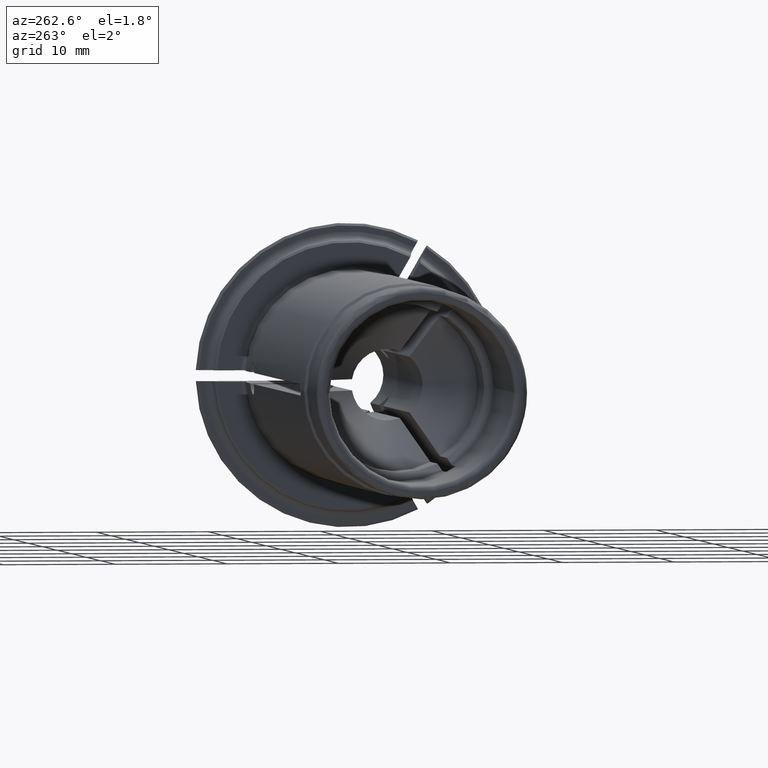
[diagram: clean part render]
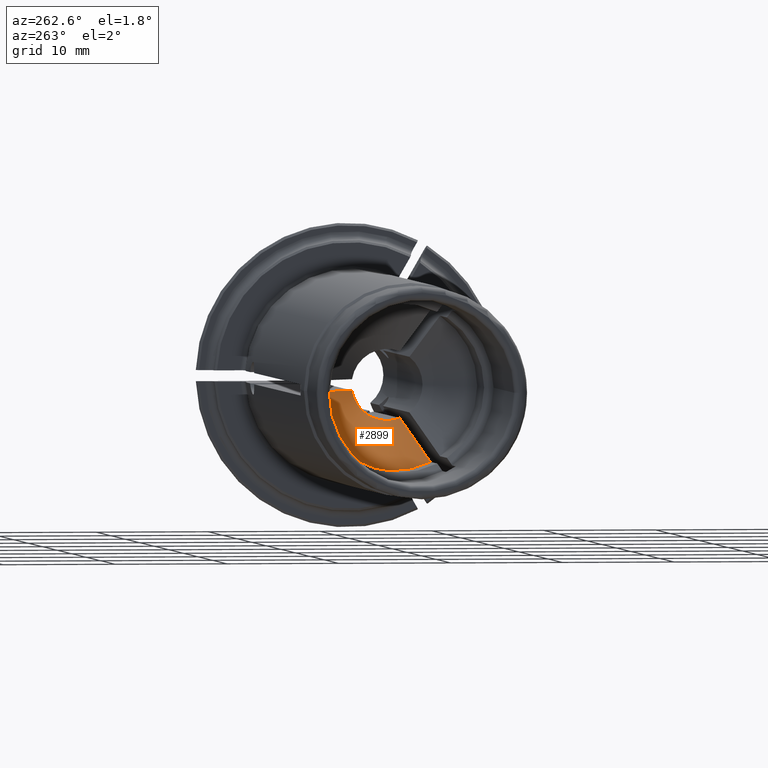
[diagram: same view with one face highlighted and labeled with its STEP entity id]
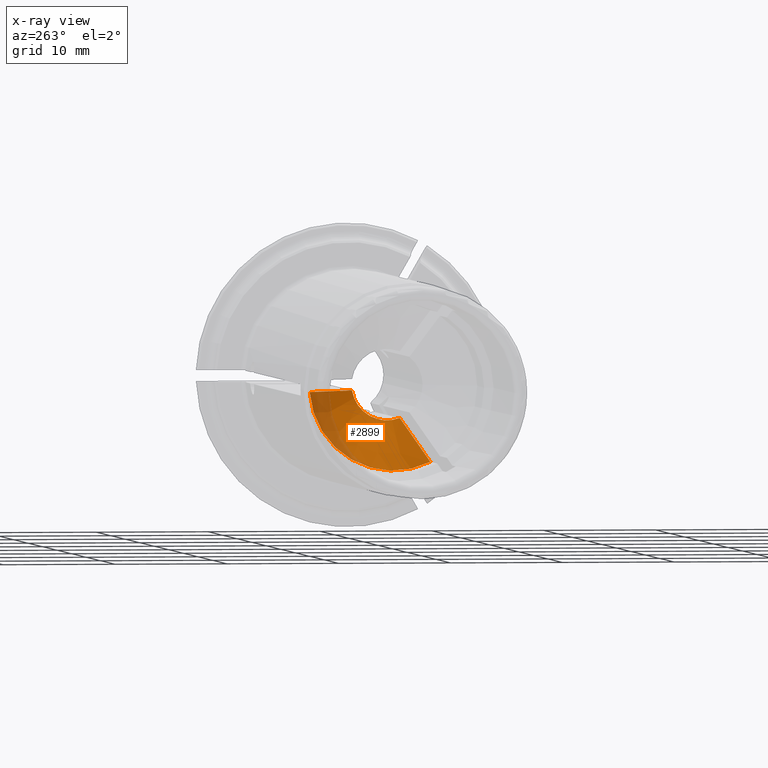
[diagram: x-ray of the same camera — body ghosted, the highlighted face saturated]
A machine part, auxiliary view. The second image highlights one B-rep face of the part: STEP entity #2899.
The next image is the same camera in x-ray: the body ghosted, the highlighted face saturated — about 20% of this face is hidden behind the body in this view.
In plain terms, the highlighted conical surface has half-angle 45 deg.
Its self-contained STEP definition (entity closure, byte-faithful):
#239=CARTESIAN_POINT('',(-2.6175E1,0.E0,0.E0));
#240=DIRECTION('',(1.E0,0.E0,0.E0));
#241=DIRECTION('',(0.E0,-3.573791099166E-1,-9.339594058605E-1));
#242=AXIS2_PLACEMENT_3D('',#239,#240,#241);
#1208=CARTESIAN_POINT('',(-2.6175E1,-1.134678673985E0,-2.965321113607E0));
#1209=CARTESIAN_POINT('',(-2.658518693573E1,-1.342363608177E0,
-3.325041971594E0));
#1210=CARTESIAN_POINT('',(-2.745322915786E1,-1.779941216956E0,
-4.082948622254E0));
#1211=CARTESIAN_POINT('',(-2.889574407819E1,-2.504466267081E0,
-5.337862820426E0));
#1212=CARTESIAN_POINT('',(-2.994986352683E1,-3.032963140433E0,
-6.253246256713E0));
#1213=CARTESIAN_POINT('',(-3.05E1,-3.308644684882E0,-6.730740698408E0));
#1215=CARTESIAN_POINT('',(-3.05E1,7.483314773548E0,-5.E-1));
#1216=CARTESIAN_POINT('',(-2.995253024984E1,6.934624353531E0,-5.E-1));
#1217=CARTESIAN_POINT('',(-2.890196474938E1,5.881198067245E0,-5.E-1));
#1218=CARTESIAN_POINT('',(-2.745953610087E1,4.432252732175E0,-5.E-1));
#1219=CARTESIAN_POINT('',(-2.658788144886E1,3.553481179898E0,-5.E-1));
#1220=CARTESIAN_POINT('',(-2.6175E1,3.135382751755E0,-5.E-1));
#1256=CARTESIAN_POINT('',(-3.05E1,0.E0,0.E0));
#1257=DIRECTION('',(-1.E0,0.E0,0.E0));
#1258=DIRECTION('',(0.E0,9.977753031397E-1,-6.666666666667E-2));
#1259=AXIS2_PLACEMENT_3D('',#1256,#1257,#1258);
#1652=VERTEX_POINT('',#1215);
#1653=VERTEX_POINT('',#1220);
#1841=VERTEX_POINT('',#1208);
#1842=VERTEX_POINT('',#1213);
#2885=CARTESIAN_POINT('',(-2.83375E1,0.E0,0.E0));
#2886=DIRECTION('',(-1.E0,0.E0,0.E0));
#2887=DIRECTION('',(0.E0,1.E0,0.E0));
#2888=AXIS2_PLACEMENT_3D('',#2885,#2886,#2887);
#2889=CONICAL_SURFACE('',#2888,5.3375E0,4.5E1);
#2891=ORIENTED_EDGE('',*,*,#2890,.T.);
#2893=ORIENTED_EDGE('',*,*,#2892,.F.);
#2895=ORIENTED_EDGE('',*,*,#2894,.T.);
#2896=ORIENTED_EDGE('',*,*,#2068,.F.);
#2897=EDGE_LOOP('',(#2891,#2893,#2895,#2896));
#2898=FACE_OUTER_BOUND('',#2897,.F.);
#2899=ADVANCED_FACE('',(#2898),#2889,.F.);
#243=CIRCLE('',#242,3.175E0);
#1214=B_SPLINE_CURVE_WITH_KNOTS('',3,(#1208,#1209,#1210,#1211,#1212,#1213),
.UNSPECIFIED.,.F.,.F.,(4,1,1,4),(0.E0,3.333333333333E-1,6.666666666667E-1,1.E0),
.UNSPECIFIED.);
#1221=B_SPLINE_CURVE_WITH_KNOTS('',3,(#1215,#1216,#1217,#1218,#1219,#1220),
.UNSPECIFIED.,.F.,.F.,(4,1,1,4),(0.E0,3.333333333333E-1,6.666666666667E-1,1.E0),
.UNSPECIFIED.);
#1260=CIRCLE('',#1259,7.5E0);
#2068=EDGE_CURVE('',#1841,#1653,#243,.T.);
#2890=EDGE_CURVE('',#1841,#1842,#1214,.T.);
#2892=EDGE_CURVE('',#1652,#1842,#1260,.T.);
#2894=EDGE_CURVE('',#1652,#1653,#1221,.T.);